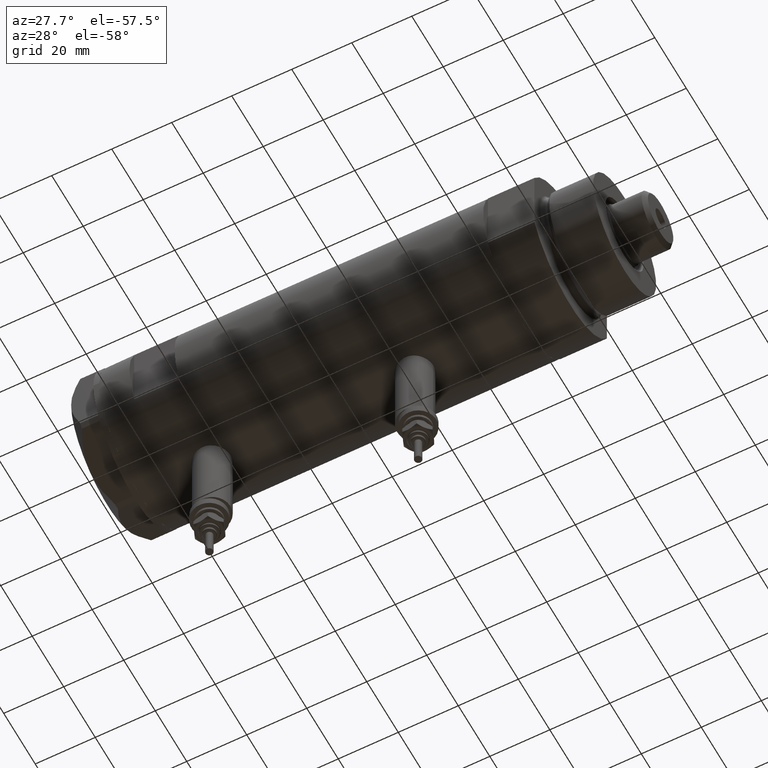
[diagram: clean part render]
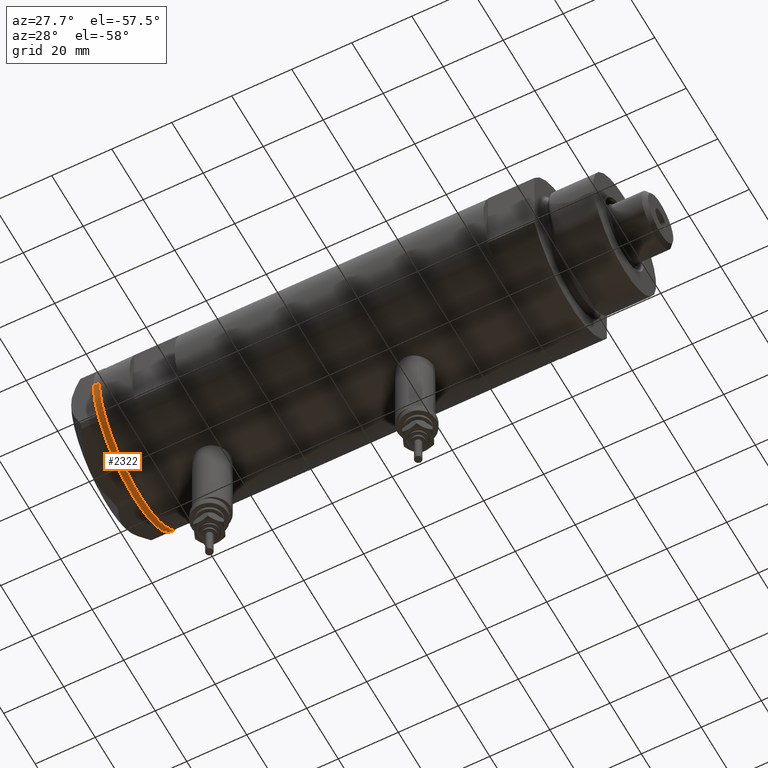
[diagram: same view with one face highlighted and labeled with its STEP entity id]
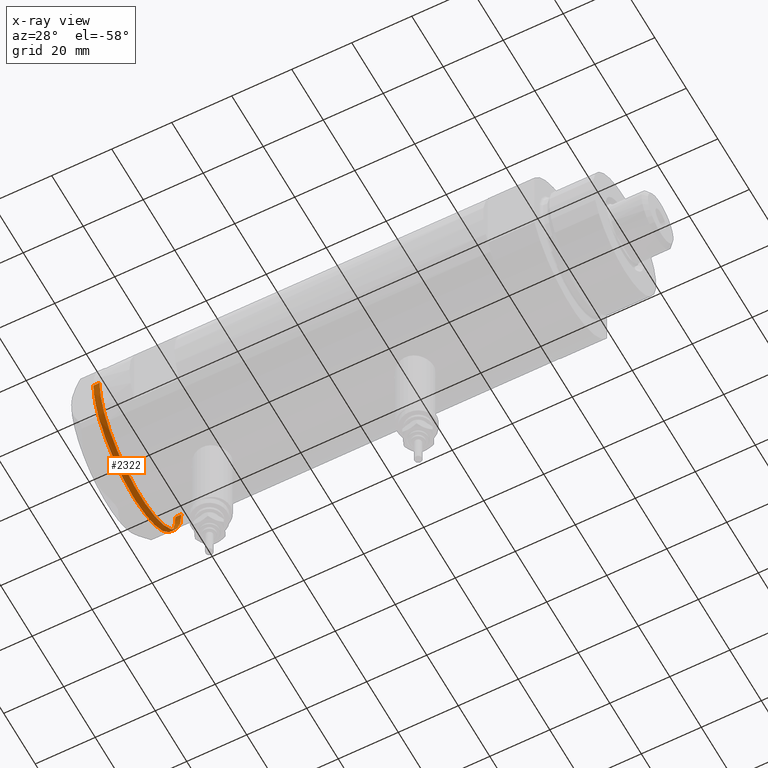
[diagram: x-ray of the same camera — body ghosted, the highlighted face saturated]
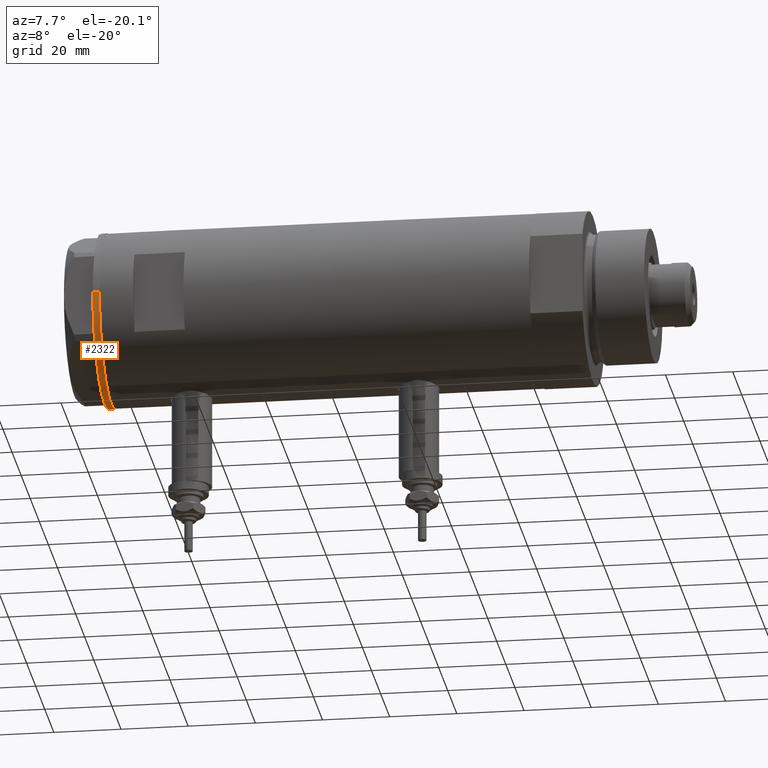
[diagram: same view with one face highlighted and labeled with its STEP entity id]
A machine part, auxiliary view. The second image highlights one B-rep face of the part: STEP entity #2322.
The next image is the same camera in x-ray: the body ghosted, the highlighted face saturated — about 2% of this face is hidden behind the body in this view.
A second angle (auxiliary view) of the same face is appended — the face is thin or edge-on in the first view.
In plain terms, the highlighted cylindrical surface (partial cylindrical patch) has radius 26 mm, axis along (-1, -0, 0).
Its self-contained STEP definition (entity closure, byte-faithful):
#16 = EDGE_CURVE ( 'NONE', #1507, #4328, #5036, .T. ) ;
#34 = AXIS2_PLACEMENT_3D ( 'NONE', #6251, #5173, #1238 ) ;
#121 = EDGE_LOOP ( 'NONE', ( #3338, #5392, #183, #5041, #794, #5223, #5426, #328, #537, #575, #2117, #5674, #446, #2978, #2192, #726 ) ) ;
#136 = DIRECTION ( 'NONE',  ( -1.000000000000000000, 0.000000000000000000, 0.000000000000000000 ) ) ;
#156 = CIRCLE ( 'NONE', #4956, 26.00000000000000355 ) ;
#164 = EDGE_CURVE ( 'NONE', #2339, #903, #343, .T. ) ;
#170 = CARTESIAN_POINT ( 'NONE',  ( 22.35837924876908289, 13.27037593168378216, 0.000000000000000000 ) ) ;
#176 = DIRECTION ( 'NONE',  ( -1.000000000000000000, 0.000000000000000000, 0.000000000000000000 ) ) ;
#180 = DIRECTION ( 'NONE',  ( 0.000000000000000000, 0.000000000000000000, -1.000000000000000000 ) ) ;
#183 = ORIENTED_EDGE ( 'NONE', *, *, #5087, .T. ) ;
#262 = CARTESIAN_POINT ( 'NONE',  ( 22.99999999999982592, 12.12435565298247653, 0.000000000000000000 ) ) ;
#290 = DIRECTION ( 'NONE',  ( 0.000000000000000000, 0.000000000000000000, -1.000000000000000000 ) ) ;
#328 = ORIENTED_EDGE ( 'NONE', *, *, #1148, .T. ) ;
#343 = CIRCLE ( 'NONE', #3829, 26.00000000000000355 ) ;
#384 = CARTESIAN_POINT ( 'NONE',  ( 21.99999999999987210, 13.85640646055121827, 0.000000000000000000 ) ) ;
#434 = CIRCLE ( 'NONE', #34, 26.00000000000000355 ) ;
#446 = ORIENTED_EDGE ( 'NONE', *, *, #6021, .T. ) ;
#463 = DIRECTION ( 'NONE',  ( 0.000000000000000000, 0.000000000000000000, -1.000000000000000000 ) ) ;
#464 = CARTESIAN_POINT ( 'NONE',  ( -0.1044411259765276462, 26.00062917530480888, 0.000000000000000000 ) ) ;
#477 = AXIS2_PLACEMENT_3D ( 'NONE', #2425, #4805, #2387 ) ;
#537 = ORIENTED_EDGE ( 'NONE', *, *, #2756, .T. ) ;
#560 = AXIS2_PLACEMENT_3D ( 'NONE', #4433, #1844, #1337 ) ;
#575 = ORIENTED_EDGE ( 'NONE', *, *, #3209, .T. ) ;
#592 = CARTESIAN_POINT ( 'NONE',  ( -26.00000000000000355, 3.184081677783118585E-15, -2.000000000000000000 ) ) ;
#636 = VERTEX_POINT ( 'NONE', #2426 ) ;
#652 = AXIS2_PLACEMENT_3D ( 'NONE', #5805, #5327, #3832 ) ;
#675 = CARTESIAN_POINT ( 'NONE',  ( 26.00000000000000355, 0.000000000000000000, 0.000000000000000000 ) ) ;
#726 = ORIENTED_EDGE ( 'NONE', *, *, #3350, .F. ) ;
#792 = B_SPLINE_CURVE_WITH_KNOTS ( 'NONE', 3,
 ( #3756, #5691, #3277, #5215 ),
 .UNSPECIFIED., .F., .F.,
 ( 4, 4 ),
 ( 0.000000000000000000, 1.000000000000000000 ),
 .UNSPECIFIED. ) ;
#794 = ORIENTED_EDGE ( 'NONE', *, *, #1759, .T. ) ;
#857 = B_SPLINE_CURVE_WITH_KNOTS ( 'NONE', 3,
 ( #170, #3175, #1727, #2124 ),
 .UNSPECIFIED., .F., .F.,
 ( 4, 4 ),
 ( 0.000000000000000000, 1.000000000000000000 ),
 .UNSPECIFIED. ) ;
#903 = VERTEX_POINT ( 'NONE', #384 ) ;
#964 = CIRCLE ( 'NONE', #4723, 26.00000000000000355 ) ;
#983 = CARTESIAN_POINT ( 'NONE',  ( 26.00000000000000355, 0.000000000000000000, -2.000000000000000000 ) ) ;
#1148 = EDGE_CURVE ( 'NONE', #636, #3796, #156, .T. ) ;
#1182 = DIRECTION ( 'NONE',  ( -1.000000000000000000, 0.000000000000000000, 0.000000000000000000 ) ) ;
#1238 = DIRECTION ( 'NONE',  ( -1.000000000000000000, 0.000000000000000000, 0.000000000000000000 ) ) ;
#1258 = CIRCLE ( 'NONE', #652, 26.00000000000000355 ) ;
#1337 = DIRECTION ( 'NONE',  ( 1.000000000000000000, 0.000000000000000000, 0.000000000000000000 ) ) ;
#1505 = VERTEX_POINT ( 'NONE', #4097 ) ;
#1507 = VERTEX_POINT ( 'NONE', #262 ) ;
#1536 = VECTOR ( 'NONE', #3083, 1000.000000000000000 ) ;
#1589 = EDGE_CURVE ( 'NONE', #3996, #636, #3624, .T. ) ;
#1604 = CIRCLE ( 'NONE', #477, 26.00000000000000355 ) ;
#1610 = CARTESIAN_POINT ( 'NONE',  ( 0.000000000000000000, 0.000000000000000000, 0.000000000000000000 ) ) ;
#1644 = CIRCLE ( 'NONE', #1854, 26.00000000000000355 ) ;
#1711 = EDGE_CURVE ( 'NONE', #1505, #3996, #4846, .T. ) ;
#1724 = CARTESIAN_POINT ( 'NONE',  ( 0.000000000000000000, 0.000000000000000000, 0.000000000000000000 ) ) ;
#1727 = CARTESIAN_POINT ( 'NONE',  ( 22.56942594318079642, 12.90986591935734218, 0.000000000000000000 ) ) ;
#1742 = VERTEX_POINT ( 'NONE', #983 ) ;
#1759 = EDGE_CURVE ( 'NONE', #5677, #1505, #792, .T. ) ;
#1772 = CARTESIAN_POINT ( 'NONE',  ( -0.3132930502240048320, 25.99811238272273783, 0.000000000000000000 ) ) ;
#1785 = FACE_OUTER_BOUND ( 'NONE', #121, .T. ) ;
#1844 = DIRECTION ( 'NONE',  ( -0.000000000000000000, -0.000000000000000000, 1.000000000000000000 ) ) ;
#1854 = AXIS2_PLACEMENT_3D ( 'NONE', #1724, #2759, #2177 ) ;
#1971 = CARTESIAN_POINT ( 'NONE',  ( 0.000000000000000000, 0.000000000000000000, 0.000000000000000000 ) ) ;
#2031 = LINE ( 'NONE', #592, #1536 ) ;
#2070 = VERTEX_POINT ( 'NONE', #2572 ) ;
#2117 = ORIENTED_EDGE ( 'NONE', *, *, #164, .T. ) ;
#2124 = CARTESIAN_POINT ( 'NONE',  ( 22.67167229899213510, 12.72773645103923990, 0.000000000000000000 ) ) ;
#2135 = DIRECTION ( 'NONE',  ( -1.000000000000000000, 0.000000000000000000, 0.000000000000000000 ) ) ;
#2177 = DIRECTION ( 'NONE',  ( -1.000000000000000000, 0.000000000000000000, 0.000000000000000000 ) ) ;
#2192 = ORIENTED_EDGE ( 'NONE', *, *, #16, .T. ) ;
#2248 = DIRECTION ( 'NONE',  ( -1.000000000000000000, 0.000000000000000000, 0.000000000000000000 ) ) ;
#2322 = ADVANCED_FACE ( 'NONE', ( #1785 ), #5645, .T. ) ;
#2339 = VERTEX_POINT ( 'NONE', #2818 ) ;
#2387 = DIRECTION ( 'NONE',  ( -1.000000000000000000, 0.000000000000000000, 0.000000000000000000 ) ) ;
#2424 = DIRECTION ( 'NONE',  ( -1.000000000000000000, 0.000000000000000000, 0.000000000000000000 ) ) ;
#2425 = CARTESIAN_POINT ( 'NONE',  ( 0.000000000000000000, 0.000000000000000000, -2.000000000000000000 ) ) ;
#2426 = CARTESIAN_POINT ( 'NONE',  ( -0.9999999999999089617, 25.98076211353316367, 0.000000000000000000 ) ) ;
#2572 = CARTESIAN_POINT ( 'NONE',  ( -22.99999999999999289, 12.12435565298215856, 0.000000000000000000 ) ) ;
#2751 = VERTEX_POINT ( 'NONE', #3154 ) ;
#2756 = EDGE_CURVE ( 'NONE', #3796, #5043, #3438, .T. ) ;
#2759 = DIRECTION ( 'NONE',  ( 0.000000000000000000, 0.000000000000000000, -1.000000000000000000 ) ) ;
#2818 = CARTESIAN_POINT ( 'NONE',  ( 0.9999999999999297229, 25.98076211353316722, 0.000000000000000000 ) ) ;
#2842 = EDGE_CURVE ( 'NONE', #3894, #1742, #1604, .T. ) ;
#2915 = CARTESIAN_POINT ( 'NONE',  ( 0.3132930502238189252, 25.99811238272274139, 0.000000000000000000 ) ) ;
#2968 = EDGE_CURVE ( 'NONE', #3839, #1507, #3887, .T. ) ;
#2978 = ORIENTED_EDGE ( 'NONE', *, *, #2968, .T. ) ;
#2999 = EDGE_CURVE ( 'NONE', #3894, #3459, #2031, .T. ) ;
#3029 = DIRECTION ( 'NONE',  ( 0.000000000000000000, 0.000000000000000000, -1.000000000000000000 ) ) ;
#3083 = DIRECTION ( 'NONE',  ( -0.000000000000000000, -0.000000000000000000, 1.000000000000000000 ) ) ;
#3154 = CARTESIAN_POINT ( 'NONE',  ( 22.35837924876908289, 13.27037593168378216, 0.000000000000000000 ) ) ;
#3175 = CARTESIAN_POINT ( 'NONE',  ( 22.46498481720465179, 13.09076325594772960, 0.000000000000000000 ) ) ;
#3209 = EDGE_CURVE ( 'NONE', #5043, #2339, #1644, .T. ) ;
#3277 = CARTESIAN_POINT ( 'NONE',  ( -22.46498481720481877, 13.09076325594744006, 0.000000000000000000 ) ) ;
#3338 = ORIENTED_EDGE ( 'NONE', *, *, #2842, .F. ) ;
#3350 = EDGE_CURVE ( 'NONE', #1742, #4328, #4765, .T. ) ;
#3408 = CARTESIAN_POINT ( 'NONE',  ( 0.3132930502238189252, 25.99811238272274139, 0.000000000000000000 ) ) ;
#3438 = B_SPLINE_CURVE_WITH_KNOTS ( 'NONE', 3,
 ( #5824, #464, #5317, #3408 ),
 .UNSPECIFIED., .F., .F.,
 ( 4, 4 ),
 ( 0.000000000000000000, 1.000000000000000000 ),
 .UNSPECIFIED. ) ;
#3455 = DIRECTION ( 'NONE',  ( 0.000000000000000000, 0.000000000000000000, -1.000000000000000000 ) ) ;
#3459 = VERTEX_POINT ( 'NONE', #5934 ) ;
#3572 = CARTESIAN_POINT ( 'NONE',  ( -22.00000000000008171, 13.85640646055089498, 0.000000000000000000 ) ) ;
#3620 = DIRECTION ( 'NONE',  ( 0.000000000000000000, 0.000000000000000000, -1.000000000000000000 ) ) ;
#3624 = CIRCLE ( 'NONE', #5040, 26.00000000000000355 ) ;
#3756 = CARTESIAN_POINT ( 'NONE',  ( -22.67167229899207115, 12.72773645103935003, 0.000000000000000000 ) ) ;
#3780 = DIRECTION ( 'NONE',  ( -0.000000000000000000, -0.000000000000000000, 1.000000000000000000 ) ) ;
#3796 = VERTEX_POINT ( 'NONE', #1772 ) ;
#3829 = AXIS2_PLACEMENT_3D ( 'NONE', #6096, #180, #2135 ) ;
#3832 = DIRECTION ( 'NONE',  ( -1.000000000000000000, 0.000000000000000000, 0.000000000000000000 ) ) ;
#3839 = VERTEX_POINT ( 'NONE', #4491 ) ;
#3880 = CARTESIAN_POINT ( 'NONE',  ( 0.000000000000000000, 0.000000000000000000, 0.000000000000000000 ) ) ;
#3887 = CIRCLE ( 'NONE', #4178, 26.00000000000000355 ) ;
#3894 = VERTEX_POINT ( 'NONE', #5059 ) ;
#3996 = VERTEX_POINT ( 'NONE', #3572 ) ;
#4026 = CARTESIAN_POINT ( 'NONE',  ( 0.000000000000000000, 0.000000000000000000, 0.000000000000000000 ) ) ;
#4097 = CARTESIAN_POINT ( 'NONE',  ( -22.35837924876937066, 13.27037593168329543, 0.000000000000000000 ) ) ;
#4178 = AXIS2_PLACEMENT_3D ( 'NONE', #1610, #3029, #136 ) ;
#4328 = VERTEX_POINT ( 'NONE', #675 ) ;
#4433 = CARTESIAN_POINT ( 'NONE',  ( 0.000000000000000000, 0.000000000000000000, -2.000000000000000000 ) ) ;
#4479 = DIRECTION ( 'NONE',  ( -1.000000000000000000, 0.000000000000000000, 0.000000000000000000 ) ) ;
#4491 = CARTESIAN_POINT ( 'NONE',  ( 22.67167229899213510, 12.72773645103923990, 0.000000000000000000 ) ) ;
#4723 = AXIS2_PLACEMENT_3D ( 'NONE', #1971, #3455, #176 ) ;
#4736 = EDGE_CURVE ( 'NONE', #903, #2751, #434, .T. ) ;
#4765 = LINE ( 'NONE', #5816, #4915 ) ;
#4805 = DIRECTION ( 'NONE',  ( 0.000000000000000000, 0.000000000000000000, -1.000000000000000000 ) ) ;
#4846 = CIRCLE ( 'NONE', #6168, 26.00000000000000355 ) ;
#4915 = VECTOR ( 'NONE', #3780, 1000.000000000000000 ) ;
#4956 = AXIS2_PLACEMENT_3D ( 'NONE', #5435, #3620, #4479 ) ;
#5036 = CIRCLE ( 'NONE', #5861, 26.00000000000000355 ) ;
#5040 = AXIS2_PLACEMENT_3D ( 'NONE', #6142, #290, #2248 ) ;
#5041 = ORIENTED_EDGE ( 'NONE', *, *, #5485, .T. ) ;
#5043 = VERTEX_POINT ( 'NONE', #2915 ) ;
#5059 = CARTESIAN_POINT ( 'NONE',  ( -26.00000000000000355, 3.184081677783118585E-15, -2.000000000000000000 ) ) ;
#5087 = EDGE_CURVE ( 'NONE', #3459, #2070, #1258, .T. ) ;
#5173 = DIRECTION ( 'NONE',  ( 0.000000000000000000, 0.000000000000000000, -1.000000000000000000 ) ) ;
#5215 = CARTESIAN_POINT ( 'NONE',  ( -22.35837924876937066, 13.27037593168329543, 0.000000000000000000 ) ) ;
#5223 = ORIENTED_EDGE ( 'NONE', *, *, #1711, .T. ) ;
#5317 = CARTESIAN_POINT ( 'NONE',  ( 0.1044411259763403238, 26.00062917530480888, 0.000000000000000000 ) ) ;
#5327 = DIRECTION ( 'NONE',  ( 0.000000000000000000, 0.000000000000000000, -1.000000000000000000 ) ) ;
#5392 = ORIENTED_EDGE ( 'NONE', *, *, #2999, .T. ) ;
#5426 = ORIENTED_EDGE ( 'NONE', *, *, #1589, .T. ) ;
#5435 = CARTESIAN_POINT ( 'NONE',  ( 0.000000000000000000, 0.000000000000000000, 0.000000000000000000 ) ) ;
#5485 = EDGE_CURVE ( 'NONE', #2070, #5677, #964, .T. ) ;
#5645 = CYLINDRICAL_SURFACE ( 'NONE', #560, 26.00000000000000355 ) ;
#5674 = ORIENTED_EDGE ( 'NONE', *, *, #4736, .T. ) ;
#5677 = VERTEX_POINT ( 'NONE', #6149 ) ;
#5691 = CARTESIAN_POINT ( 'NONE',  ( -22.56942594318084616, 12.90986591935725158, 0.000000000000000000 ) ) ;
#5805 = CARTESIAN_POINT ( 'NONE',  ( 0.000000000000000000, 0.000000000000000000, 0.000000000000000000 ) ) ;
#5816 = CARTESIAN_POINT ( 'NONE',  ( 26.00000000000000355, 0.000000000000000000, -2.000000000000000000 ) ) ;
#5824 = CARTESIAN_POINT ( 'NONE',  ( -0.3132930502240048320, 25.99811238272273783, 0.000000000000000000 ) ) ;
#5861 = AXIS2_PLACEMENT_3D ( 'NONE', #4026, #5977, #1182 ) ;
#5934 = CARTESIAN_POINT ( 'NONE',  ( -26.00000000000000355, 3.184081677783118585E-15, 0.000000000000000000 ) ) ;
#5977 = DIRECTION ( 'NONE',  ( 0.000000000000000000, 0.000000000000000000, -1.000000000000000000 ) ) ;
#6021 = EDGE_CURVE ( 'NONE', #2751, #3839, #857, .T. ) ;
#6096 = CARTESIAN_POINT ( 'NONE',  ( 0.000000000000000000, 0.000000000000000000, 0.000000000000000000 ) ) ;
#6142 = CARTESIAN_POINT ( 'NONE',  ( 0.000000000000000000, 0.000000000000000000, 0.000000000000000000 ) ) ;
#6149 = CARTESIAN_POINT ( 'NONE',  ( -22.67167229899207115, 12.72773645103935003, 0.000000000000000000 ) ) ;
#6168 = AXIS2_PLACEMENT_3D ( 'NONE', #3880, #463, #2424 ) ;
#6251 = CARTESIAN_POINT ( 'NONE',  ( 0.000000000000000000, 0.000000000000000000, 0.000000000000000000 ) ) ;